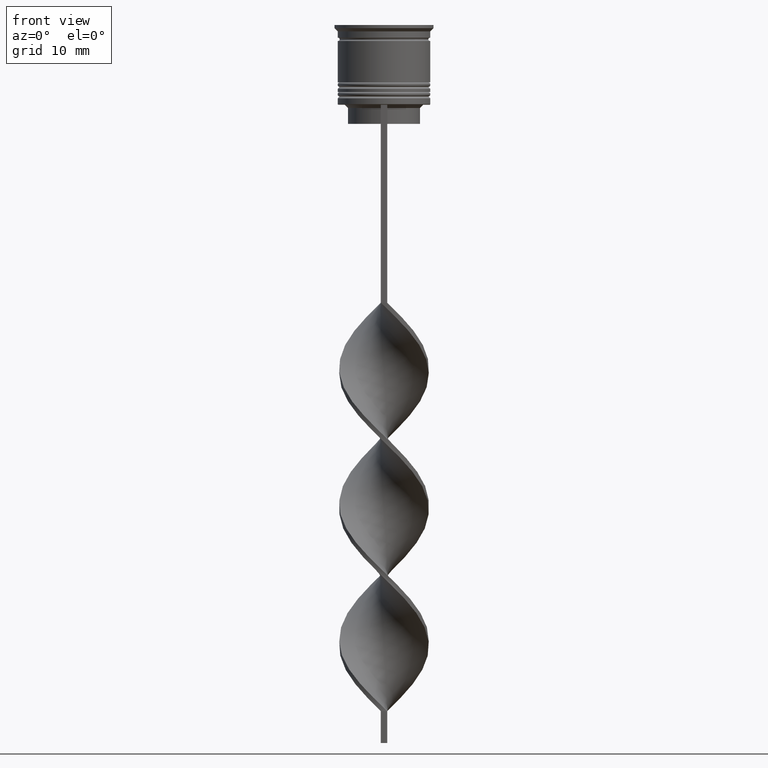
[diagram: clean part render]
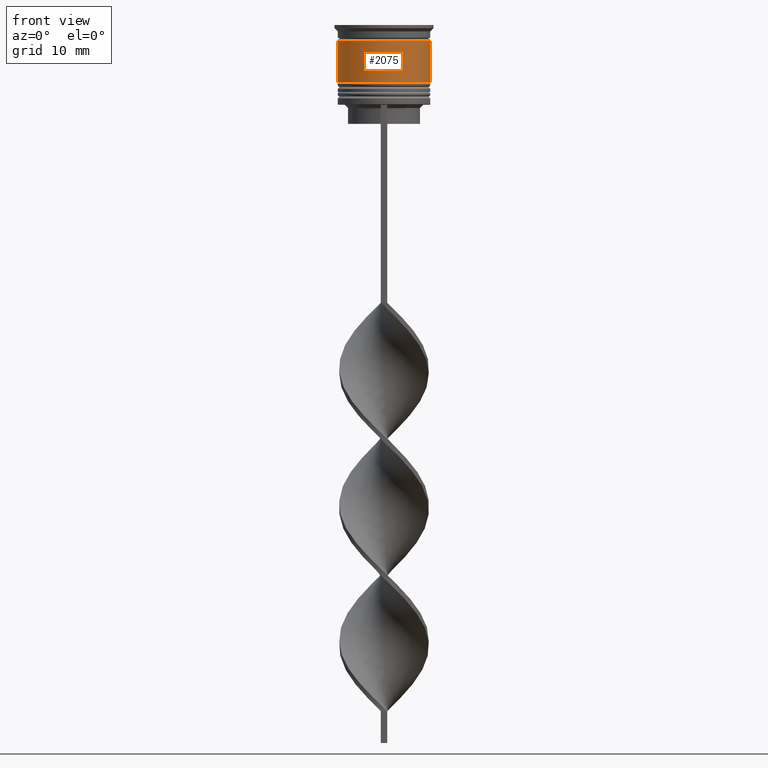
[diagram: same view with one face highlighted and labeled with its STEP entity id]
A machine part, front view. The second image highlights one B-rep face of the part: STEP entity #2075.
In plain terms, the highlighted cylindrical surface (partial cylindrical patch) has radius 7.25 mm, axis along (-0, -0, 1).
Its self-contained STEP definition (entity closure, byte-faithful):
#76 = VERTEX_POINT ( 'NONE', #673 ) ;
#144 = VERTEX_POINT ( 'NONE', #322 ) ;
#149 = DIRECTION ( 'NONE',  ( -0.000000000000000000, -0.000000000000000000, 1.000000000000000000 ) ) ;
#211 = CARTESIAN_POINT ( 'NONE',  ( -7.250000000000000888, 8.878689293818312046E-16, -9.000000000000001776 ) ) ;
#231 = FACE_OUTER_BOUND ( 'NONE', #1764, .T. ) ;
#311 = CIRCLE ( 'NONE', #3377, 7.249999999999997335 ) ;
#322 = CARTESIAN_POINT ( 'NONE',  ( 7.250000000000000888, 0.000000000000000000, -9.000000000000001776 ) ) ;
#439 = ORIENTED_EDGE ( 'NONE', *, *, #2363, .T. ) ;
#629 = ORIENTED_EDGE ( 'NONE', *, *, #1004, .T. ) ;
#673 = CARTESIAN_POINT ( 'NONE',  ( 7.249999999999997335, 0.000000000000000000, -2.500000000000000444 ) ) ;
#749 = DIRECTION ( 'NONE',  ( 1.000000000000000000, 0.000000000000000000, 0.000000000000000000 ) ) ;
#841 = DIRECTION ( 'NONE',  ( -0.000000000000000000, -0.000000000000000000, 1.000000000000000000 ) ) ;
#923 = CARTESIAN_POINT ( 'NONE',  ( 0.000000000000000000, 0.000000000000000000, -2.500000000000000444 ) ) ;
#1004 = EDGE_CURVE ( 'NONE', #2522, #144, #3425, .T. ) ;
#1268 = CARTESIAN_POINT ( 'NONE',  ( 0.000000000000000000, 0.000000000000000000, -9.000000000000001776 ) ) ;
#1276 = AXIS2_PLACEMENT_3D ( 'NONE', #1268, #1603, #2669 ) ;
#1386 = CARTESIAN_POINT ( 'NONE',  ( -7.249999999999999112, 8.878689293818310074E-16, 0.000000000000000000 ) ) ;
#1435 = CARTESIAN_POINT ( 'NONE',  ( 7.249999999999999112, 0.000000000000000000, 0.000000000000000000 ) ) ;
#1507 = LINE ( 'NONE', #1435, #2231 ) ;
#1585 = CARTESIAN_POINT ( 'NONE',  ( 0.000000000000000000, 0.000000000000000000, 0.000000000000000000 ) ) ;
#1603 = DIRECTION ( 'NONE',  ( -0.000000000000000000, -0.000000000000000000, 1.000000000000000000 ) ) ;
#1764 = EDGE_LOOP ( 'NONE', ( #2256, #629, #439, #2995 ) ) ;
#1777 = EDGE_CURVE ( 'NONE', #2522, #3290, #3262, .T. ) ;
#1870 = DIRECTION ( 'NONE',  ( -0.000000000000000000, -0.000000000000000000, 1.000000000000000000 ) ) ;
#1979 = EDGE_CURVE ( 'NONE', #3290, #76, #311, .T. ) ;
#2028 = DIRECTION ( 'NONE',  ( -0.000000000000000000, -0.000000000000000000, 1.000000000000000000 ) ) ;
#2075 = ADVANCED_FACE ( 'NONE', ( #231 ), #3201, .T. ) ;
#2231 = VECTOR ( 'NONE', #2028, 1000.000000000000000 ) ;
#2256 = ORIENTED_EDGE ( 'NONE', *, *, #1777, .F. ) ;
#2319 = DIRECTION ( 'NONE',  ( 1.000000000000000000, 0.000000000000000000, 0.000000000000000000 ) ) ;
#2363 = EDGE_CURVE ( 'NONE', #144, #76, #1507, .T. ) ;
#2522 = VERTEX_POINT ( 'NONE', #211 ) ;
#2669 = DIRECTION ( 'NONE',  ( 1.000000000000000000, 0.000000000000000000, 0.000000000000000000 ) ) ;
#2821 = CARTESIAN_POINT ( 'NONE',  ( -7.249999999999997335, 8.878689293818308102E-16, -2.500000000000000444 ) ) ;
#2854 = VECTOR ( 'NONE', #841, 1000.000000000000000 ) ;
#2995 = ORIENTED_EDGE ( 'NONE', *, *, #1979, .F. ) ;
#3201 = CYLINDRICAL_SURFACE ( 'NONE', #3264, 7.249999999999999112 ) ;
#3262 = LINE ( 'NONE', #1386, #2854 ) ;
#3264 = AXIS2_PLACEMENT_3D ( 'NONE', #1585, #1870, #749 ) ;
#3290 = VERTEX_POINT ( 'NONE', #2821 ) ;
#3377 = AXIS2_PLACEMENT_3D ( 'NONE', #923, #149, #2319 ) ;
#3425 = CIRCLE ( 'NONE', #1276, 7.250000000000000888 ) ;